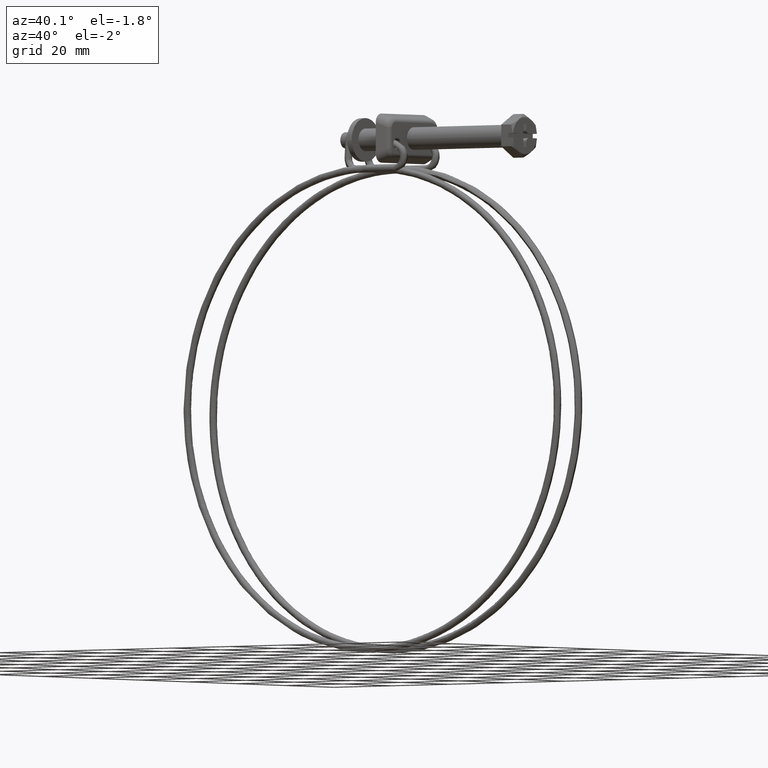
[diagram: clean part render]
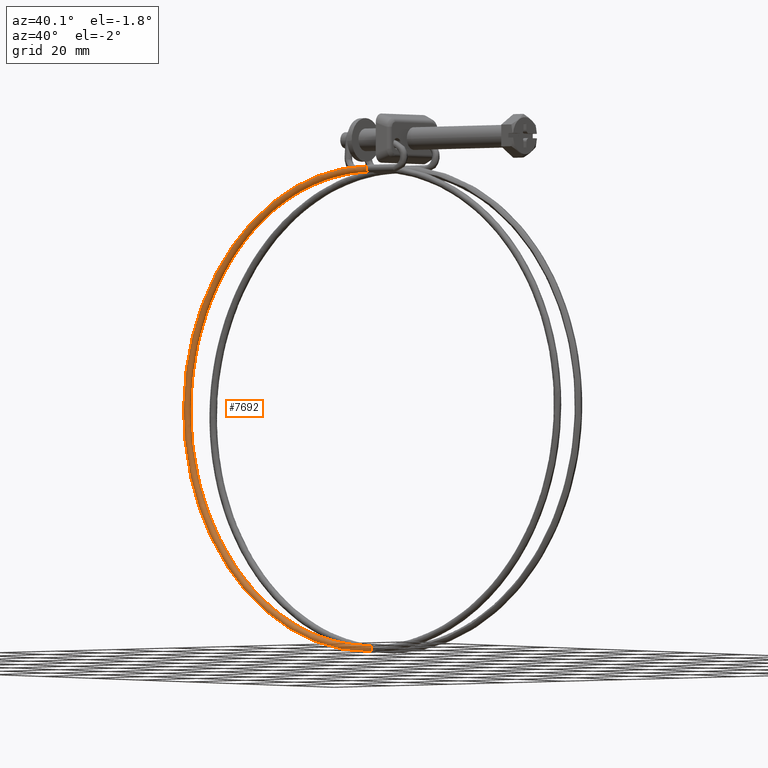
[diagram: same view with one face highlighted and labeled with its STEP entity id]
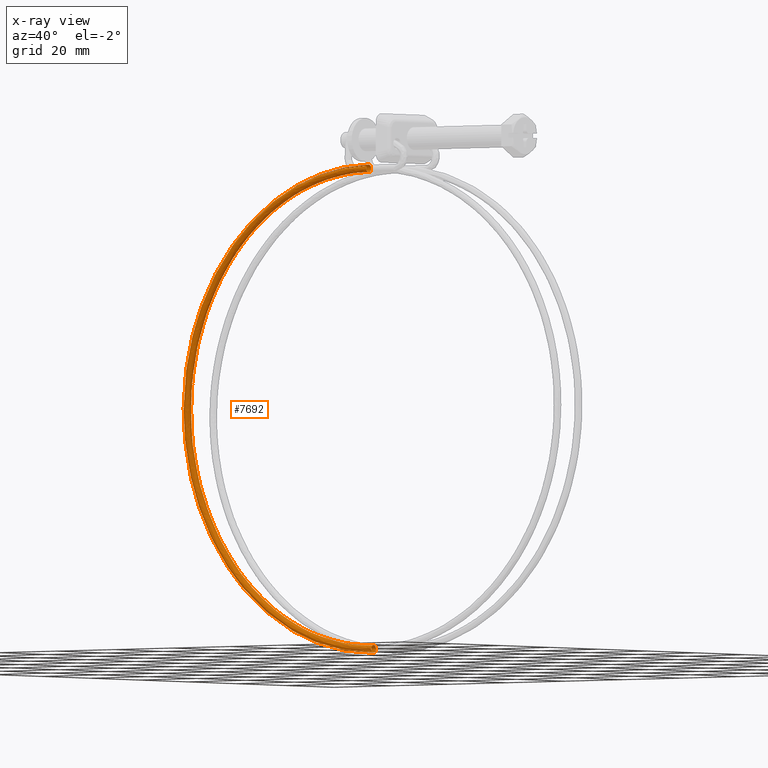
[diagram: x-ray of the same camera — body ghosted, the highlighted face saturated]
A machine part, auxiliary view. The second image highlights one B-rep face of the part: STEP entity #7692.
The next image is the same camera in x-ray: the body ghosted, the highlighted face saturated — about 0% of this face is hidden behind the body in this view.
In plain terms, the highlighted face is a freeform B-spline surface patch.
Its self-contained STEP definition (entity closure, byte-faithful):
#5718=CARTESIAN_POINT('',(-44.649999999999046,-5.988340908719309,-6.903656395402618));
#5719=VERTEX_POINT('',#5718);
#5720=CARTESIAN_POINT('',(-44.649999999999046,-6.341647600425940,-6.850501847938300));
#5721=VERTEX_POINT('',#5720);
#5722=CARTESIAN_POINT('',(-44.649999999999046,-5.988340908719309,-6.903656395402618));
#5723=CARTESIAN_POINT('',(-44.649999999999046,-6.101737345944429,-6.865172235202039));
#5724=CARTESIAN_POINT('',(-44.649999999999046,-6.221881593216526,-6.846560706979928));
#5725=CARTESIAN_POINT('',(-44.649999999999046,-6.341647600425940,-6.850501847938300));
#5726=B_SPLINE_CURVE_WITH_KNOTS('',3,(#5722,#5723,#5724,#5725),.UNSPECIFIED.,.F.,.U.,(4,4),(0.942811843935245,1.0),.UNSPECIFIED.);
#5727=EDGE_CURVE('',#5719,#5721,#5726,.T.);
#5729=CARTESIAN_POINT('',(-44.649999999999046,-7.060248549818919,-7.188876349357912));
#5730=VERTEX_POINT('',#5729);
#5740=CARTESIAN_POINT('',(-44.649999999999046,-6.278356367922030,-8.849500152061665));
#5741=VERTEX_POINT('',#5740);
#5742=CARTESIAN_POINT('',(-44.649999999999046,-7.060248549818919,-7.188876349357912));
#5743=CARTESIAN_POINT('',(-44.649999999999046,-7.226087401114802,-7.377586474456151));
#5744=CARTESIAN_POINT('',(-44.649999999999046,-7.317454529690281,-7.630445629972988));
#5745=CARTESIAN_POINT('',(-44.649999999999046,-7.301216333274380,-8.143314882367472));
#5746=CARTESIAN_POINT('',(-44.649999999999046,-7.185263428286760,-8.399961293022701));
#5747=CARTESIAN_POINT('',(-44.649999999999046,-6.803492136794089,-8.758299623096461));
#5748=CARTESIAN_POINT('',(-44.649999999999046,-6.540024634037550,-8.857784955022959));
#5749=CARTESIAN_POINT('',(-44.649999999999046,-6.278356367922030,-8.849500152061665));
#5750=B_SPLINE_CURVE_WITH_KNOTS('',3,(#5742,#5743,#5744,#5745,#5746,#5747,#5748,#5749),.UNSPECIFIED.,.F.,.U.,(4,2,2,4),(0.130000262351252,0.250000000000000,0.375000000000000,0.500000000000000),.UNSPECIFIED.);
#5751=EDGE_CURVE('',#5730,#5741,#5750,.T.);
#5753=CARTESIAN_POINT('',(-44.649999999371360,-5.310474070029812,-7.879430643908948));
#5754=VERTEX_POINT('',#5753);
#5755=CARTESIAN_POINT('',(-44.649999999999046,-6.278356367922030,-8.849500152061665));
#5756=CARTESIAN_POINT('',(-44.649999999911707,-6.016682688212904,-8.841215521237947));
#5757=CARTESIAN_POINT('',(-44.649999999791078,-5.760028800690158,-8.725262853994423));
#5758=CARTESIAN_POINT('',(-44.649999999560670,-5.415616237429212,-8.358343651055815));
#5759=CARTESIAN_POINT('',(-44.649999999452042,-5.318147165945974,-8.120582920263427));
#5760=CARTESIAN_POINT('',(-44.649999999371360,-5.310474070029812,-7.879430643908948));
#5761=B_SPLINE_CURVE_WITH_KNOTS('',3,(#5755,#5756,#5757,#5758,#5759,#5760),.UNSPECIFIED.,.F.,.U.,(4,2,4),(0.500000000000000,0.625000000000000,0.740274521158673),.UNSPECIFIED.);
#5762=EDGE_CURVE('',#5741,#5754,#5761,.T.);
#5837=CARTESIAN_POINT('',(-44.649999999371360,-5.310474070029812,-7.879430643908948));
#5838=CARTESIAN_POINT('',(-44.649999999379993,-5.309825519526923,-7.859078792878525));
#5839=CARTESIAN_POINT('',(-44.649999999388832,-5.309816082667636,-7.838702652882171));
#5840=CARTESIAN_POINT('',(-44.649999999513902,-5.318722168566631,-7.556584230459575));
#5841=CARTESIAN_POINT('',(-44.649999999660231,-5.434647803677936,-7.299830920178500));
#5842=CARTESIAN_POINT('',(-44.649999999868960,-5.729049013294997,-7.023310944488372));
#5843=CARTESIAN_POINT('',(-44.649999999938643,-5.853951370551862,-6.949512709024257));
#5844=CARTESIAN_POINT('',(-44.649999999999046,-5.988340908719309,-6.903656395402618));
#5845=B_SPLINE_CURVE_WITH_KNOTS('',3,(#5837,#5838,#5839,#5840,#5841,#5842,#5843,#5844),.UNSPECIFIED.,.F.,.U.,(4,2,2,4),(0.740274521158673,0.750000000000000,0.875000000000000,0.942811843935245),.UNSPECIFIED.);
#5846=EDGE_CURVE('',#5754,#5719,#5845,.T.);
#6664=CARTESIAN_POINT('',(-44.649999999855410,-3.364945210158729,-135.203131635922600));
#6665=VERTEX_POINT('',#6664);
#6681=CARTESIAN_POINT('',(-44.650000000000752,-4.300002000000002,-133.850000999999990));
#6682=VERTEX_POINT('',#6681);
#6683=CARTESIAN_POINT('',(-44.650000000000752,-4.300002000000002,-133.850000999999990));
#6684=CARTESIAN_POINT('',(-44.649999999987593,-4.038161661959670,-133.850016503426100));
#6685=CARTESIAN_POINT('',(-44.649999999966681,-3.777909289246834,-133.957814246805610));
#6686=CARTESIAN_POINT('',(-44.649999999921150,-3.407527296419484,-134.328108156277690));
#6687=CARTESIAN_POINT('',(-44.649999999896842,-3.299678426657533,-134.588324114420290));
#6688=CARTESIAN_POINT('',(-44.649999999869038,-3.299591888972492,-134.970530271645000));
#6689=CARTESIAN_POINT('',(-44.649999999861457,-3.322352722698359,-135.090572399688800));
#6690=CARTESIAN_POINT('',(-44.649999999855410,-3.364945210158729,-135.203131635922600));
#6691=B_SPLINE_CURVE_WITH_KNOTS('',3,(#6683,#6684,#6685,#6686,#6687,#6688,#6689,#6690),.UNSPECIFIED.,.F.,.U.,(4,2,2,4),(0.500000000000000,0.625000000000000,0.750000000000000,0.807474354685364),.UNSPECIFIED.);
#6692=EDGE_CURVE('',#6682,#6665,#6691,.T.);
#6694=CARTESIAN_POINT('',(-44.650000000000759,-5.028951109210404,-135.534536542634500));
#6695=VERTEX_POINT('',#6694);
#6696=CARTESIAN_POINT('',(-44.650000000000759,-5.028951109210404,-135.534536542634500));
#6697=CARTESIAN_POINT('',(-44.650000000000759,-5.200678748661233,-135.351169005261110));
#6698=CARTESIAN_POINT('',(-44.650000000000752,-5.300001999999999,-135.101327862819890));
#6699=CARTESIAN_POINT('',(-44.650000000000759,-5.300002000000001,-134.588201612200890));
#6700=CARTESIAN_POINT('',(-44.650000000000738,-5.192228903609815,-134.328014341236700));
#6701=CARTESIAN_POINT('',(-44.650000000000752,-4.821988658763284,-133.957774096390210));
#6702=CARTESIAN_POINT('',(-44.650000000000752,-4.561801387799152,-133.850000999999990));
#6703=CARTESIAN_POINT('',(-44.650000000000752,-4.300002000000002,-133.850000999999990));
#6704=B_SPLINE_CURVE_WITH_KNOTS('',3,(#6696,#6697,#6698,#6699,#6700,#6701,#6702,#6703),.UNSPECIFIED.,.F.,.U.,(4,2,2,4),(0.130000262351262,0.250000000000000,0.375000000000000,0.500000000000000),.UNSPECIFIED.);
#6705=EDGE_CURVE('',#6695,#6682,#6704,.T.);
#6707=CARTESIAN_POINT('',(-44.649999999978697,-4.300002000000001,-135.850000999999990));
#6708=VERTEX_POINT('',#6707);
#6773=CARTESIAN_POINT('',(-44.649999999855410,-3.364945210158729,-135.203131635922600));
#6774=CARTESIAN_POINT('',(-44.649999999868037,-3.415054867142068,-135.335349654665490));
#6775=CARTESIAN_POINT('',(-44.649999999882482,-3.492539150088722,-135.457238662669110));
#6776=CARTESIAN_POINT('',(-44.649999999925498,-3.777820058850048,-135.742301835923310));
#6777=CARTESIAN_POINT('',(-44.649999999955362,-4.038116918531990,-135.850033442921700));
#6778=CARTESIAN_POINT('',(-44.649999999978697,-4.300002000000001,-135.850000999999990));
#6779=B_SPLINE_CURVE_WITH_KNOTS('',3,(#6773,#6774,#6775,#6776,#6777,#6778),.UNSPECIFIED.,.F.,.U.,(4,2,4),(0.807474354685363,0.875000000000000,1.0),.UNSPECIFIED.);
#6780=EDGE_CURVE('',#6665,#6708,#6779,.T.);
#7352=CARTESIAN_POINT('',(-44.650000000000752,-5.028949982883884,-135.534537745304700));
#7353=CARTESIAN_POINT('',(-44.650000000000752,-5.200678314366810,-135.351170097699110));
#7354=CARTESIAN_POINT('',(-44.650000000000752,-5.300002000000000,-135.101328412287190));
#7355=CARTESIAN_POINT('',(-44.650000000000752,-5.300002000000000,-134.588201612200810));
#7356=CARTESIAN_POINT('',(-44.650000000000752,-5.192228903609820,-134.328014341236610));
#7357=CARTESIAN_POINT('',(-44.650000000000752,-4.821988658763289,-133.957774096390210));
#7358=CARTESIAN_POINT('',(-44.650000000000752,-4.561801387799160,-133.850000999999990));
#7359=CARTESIAN_POINT('',(-44.650000000000752,-4.038202612200855,-133.850000999999990));
#7360=CARTESIAN_POINT('',(-44.650000000000752,-3.778015341236725,-133.957774096390210));
#7361=CARTESIAN_POINT('',(-44.650000000000752,-3.407775096390195,-134.328014341236610));
#7362=CARTESIAN_POINT('',(-44.650000000000752,-3.300002000000000,-134.588201612200810));
#7363=CARTESIAN_POINT('',(-44.650000000000752,-3.300002000000000,-135.111800387799210));
#7364=CARTESIAN_POINT('',(-44.650000000000752,-3.407775096390195,-135.371987658763200));
#7365=CARTESIAN_POINT('',(-44.650000000000752,-3.778015341236725,-135.742227903609800));
#7366=CARTESIAN_POINT('',(-44.650000000000752,-4.038202612200855,-135.850000999999990));
#7367=CARTESIAN_POINT('',(-44.650000000000752,-4.300002000000007,-135.850000999999990));
#7368=CARTESIAN_POINT('',(-53.051651470459703,-5.028950509454305,-135.534537751134710));
#7369=CARTESIAN_POINT('',(-53.027288764811203,-5.200678839408155,-135.351170104923910));
#7370=CARTESIAN_POINT('',(-52.994373168267167,-5.300002522985792,-135.101328420362310));
#7371=CARTESIAN_POINT('',(-52.927193545750598,-5.300002518798801,-134.588201620276010));
#7372=CARTESIAN_POINT('',(-52.893352603524498,-5.192229420306440,-134.328014348388990));
#7373=CARTESIAN_POINT('',(-52.845647149488002,-4.821989172509470,-133.957774100543390));
#7374=CARTESIAN_POINT('',(-52.832076399894007,-4.561801900722170,-133.850001002076600));
#7375=CARTESIAN_POINT('',(-52.833161335157897,-4.038203125222776,-133.850000997807800));
#7376=CARTESIAN_POINT('',(-52.847810339111398,-3.778015855187715,-133.957774092005590));
#7377=CARTESIAN_POINT('',(-52.897050123254800,-3.407775613433455,-134.328014333852000));
#7378=CARTESIAN_POINT('',(-52.931337693033313,-3.300002519186480,-134.588201603893000));
#7379=CARTESIAN_POINT('',(-52.999888328340901,-3.300002523457110,-135.111800379491200));
#7380=CARTESIAN_POINT('',(-53.033729270567100,-3.407775621949470,-135.371987651378390));
#7381=CARTESIAN_POINT('',(-53.081434724560303,-3.778015869744625,-135.742227899225410));
#7382=CARTESIAN_POINT('',(-53.095005474154512,-4.038203141537336,-135.850000997807800));
#7383=CARTESIAN_POINT('',(-53.094463006544203,-4.300002529287037,-135.850000999942210));
#7384=CARTESIAN_POINT('',(-61.447229034788698,-5.055384990124714,-133.864266130881700));
#7385=CARTESIAN_POINT('',(-61.398521364163329,-5.227036664890507,-133.685741967573190));
#7386=CARTESIAN_POINT('',(-61.332714140082842,-5.326256782318862,-133.442444143630810));
#7387=CARTESIAN_POINT('',(-61.198403814438713,-5.326045403111840,-132.942673144308800));
#7388=CARTESIAN_POINT('',(-61.130746572830802,-5.218165826940910,-132.689213700470990));
#7389=CARTESIAN_POINT('',(-61.035370403567903,-4.847775477929600,-132.328457648937190));
#7390=CARTESIAN_POINT('',(-61.008238786393903,-4.587545506899129,-132.223382516993010));
#7391=CARTESIAN_POINT('',(-61.010407866805998,-4.063950145022624,-132.223166824028990));
#7392=CARTESIAN_POINT('',(-61.039695207630501,-3.803808966828495,-132.328027591002810));
#7393=CARTESIAN_POINT('',(-61.138138919906901,-3.433723653883490,-132.688478606259390));
#7394=CARTESIAN_POINT('',(-61.206689091523501,-3.326058442578600,-132.941849257430190));
#7395=CARTESIAN_POINT('',(-61.343740444106203,-3.326274135645180,-133.451819664901590));
#7396=CARTESIAN_POINT('',(-61.411397685714199,-3.434153711819715,-133.705279108970190));
#7397=CARTESIAN_POINT('',(-61.506773855034801,-3.804544060831025,-134.066035160273200));
#7398=CARTESIAN_POINT('',(-61.533905472208687,-4.064774031857895,-134.171110292217410));
#7399=CARTESIAN_POINT('',(-61.532820931973802,-4.326571712794342,-134.171218138757010));
#7400=CARTESIAN_POINT('',(-76.968836144378258,-5.157139875703120,-127.434977289049600));
#7401=CARTESIAN_POINT('',(-76.875122169151851,-5.328496502966043,-127.275095430512290));
#7402=CARTESIAN_POINT('',(-76.748508506461832,-5.427317992079202,-127.056984570529290));
#7403=CARTESIAN_POINT('',(-76.490094290360588,-5.426293025908240,-126.608619315071000));
#7404=CARTESIAN_POINT('',(-76.359921178104216,-5.318003614903181,-126.381054907959400));
#7405=CARTESIAN_POINT('',(-76.176416611802608,-4.947035523210550,-126.056802996794800));
#7406=CARTESIAN_POINT('',(-76.124215148193599,-4.686641201972960,-125.962112181433000));
#7407=CARTESIAN_POINT('',(-76.128388477573296,-4.163058979342491,-125.961066297480600));
#7408=CARTESIAN_POINT('',(-76.184737571825195,-3.903095209686230,-126.054717669476200));
#7409=CARTESIAN_POINT('',(-76.374144117058989,-3.533606221112310,-126.377490477733010));
#7410=CARTESIAN_POINT('',(-76.506035234143496,-3.426356253577895,-126.604624333093990));
#7411=CARTESIAN_POINT('',(-76.769723209872396,-3.427402137427615,-127.062139899888000));
#7412=CARTESIAN_POINT('',(-76.899896322128811,-3.535691548429080,-127.289704306769000));
#7413=CARTESIAN_POINT('',(-77.083400888372694,-3.906659640121704,-127.613956218164400));
#7414=CARTESIAN_POINT('',(-77.135602351981589,-4.167053961362895,-127.708647033526010));
#7415=CARTESIAN_POINT('',(-77.133515687320596,-4.428845072679938,-127.709169975444600));
#7416=CARTESIAN_POINT('',(-84.087385564352999,-5.232419709587752,-122.678490235570100));
#7417=CARTESIAN_POINT('',(-83.973032020696721,-5.403558064147421,-122.532399737199000));
#7418=CARTESIAN_POINT('',(-83.818532961565523,-5.502084652664221,-122.332921899802300));
#7419=CARTESIAN_POINT('',(-83.503205591330001,-5.500457804333590,-121.922586015185200));
#7420=CARTESIAN_POINT('',(-83.344363149348709,-5.391865202291000,-121.714178454974000));
#7421=CARTESIAN_POINT('',(-83.120443532443204,-5.020469703281701,-121.416931881462600));
#7422=CARTESIAN_POINT('',(-83.056745217052907,-4.759953797671140,-121.329923262732810));
#7423=CARTESIAN_POINT('',(-83.061837680619803,-4.236381295294480,-121.328263213423000));
#7424=CARTESIAN_POINT('',(-83.130597100978704,-3.976548770411811,-121.413622005053000));
#7425=CARTESIAN_POINT('',(-83.361718548777702,-3.607500935666875,-121.708520914390210));
#7426=CARTESIAN_POINT('',(-83.522657369063694,-3.500558160641175,-121.916245093852000));
#7427=CARTESIAN_POINT('',(-83.844419991752986,-3.502218209965351,-122.334955180196000));
#7428=CARTESIAN_POINT('',(-84.003262433734292,-3.610810812007940,-122.543362740349590));
#7429=CARTESIAN_POINT('',(-84.227182050639797,-3.982206311013630,-122.840609313860990));
#7430=CARTESIAN_POINT('',(-84.290880366145501,-4.242722216620595,-122.927617932591010));
#7431=CARTESIAN_POINT('',(-84.288334134362060,-4.504508467808923,-122.928447957245790));
#7432=CARTESIAN_POINT('',(-95.967045076798783,-5.420437044013289,-110.798787916934000));
#7433=CARTESIAN_POINT('',(-95.818249912327275,-5.591030296943582,-110.687139163458800));
#7434=CARTESIAN_POINT('',(-95.617217988315872,-5.688820417788413,-110.534194358506400));
#7435=CARTESIAN_POINT('',(-95.206918609946598,-5.685690463757970,-110.218830824350210));
#7436=CARTESIAN_POINT('',(-95.000235139511190,-5.576340689959739,-110.058264465058000));
#7437=CARTESIAN_POINT('',(-94.708874197435605,-5.203877808667211,-109.828459459667200));
#7438=CARTESIAN_POINT('',(-94.625990877745295,-4.943058265286510,-109.760635914454000));
#7439=CARTESIAN_POINT('',(-94.632617117000294,-4.419510037715730,-109.757442083803400));
#7440=CARTESIAN_POINT('',(-94.722085872732308,-4.160005275929900,-109.822091465537000));
#7441=CARTESIAN_POINT('',(-95.022817732378400,-3.792059153242970,-110.047379712232000));
#7442=CARTESIAN_POINT('',(-95.232228979750388,-3.685883543007305,-110.206631289951200));
#7443=CARTESIAN_POINT('',(-95.650901814821097,-3.689077373643410,-110.528430814600400));
#7444=CARTESIAN_POINT('',(-95.857585285256491,-3.798427147441640,-110.688997173950400));
#7445=CARTESIAN_POINT('',(-96.148946227332090,-4.170890028737770,-110.918802179341000));
#7446=CARTESIAN_POINT('',(-96.231829546907008,-4.431709572122080,-110.986625724554200));
#7447=CARTESIAN_POINT('',(-96.228516427279558,-4.693483685907470,-110.988222639879600));
#7448=CARTESIAN_POINT('',(-100.723482553268790,-5.533100572323808,-103.680246520081990));
#7449=CARTESIAN_POINT('',(-100.560898788484290,-5.703367212295768,-103.589234505927710));
#7450=CARTESIAN_POINT('',(-100.341237570467300,-5.800716057834845,-103.464171275271200));
#7451=CARTESIAN_POINT('',(-99.892916431180609,-5.796685475794940,-103.205713093916000));
#7452=CARTESIAN_POINT('',(-99.667079947348100,-5.686882021254729,-103.073812134602210));
#7453=CARTESIAN_POINT('',(-99.348719071446695,-5.313779587866010,-102.884416640138600));
#7454=CARTESIAN_POINT('',(-99.258155092474311,-5.052778111375361,-102.828088370701200));
#7455=CARTESIAN_POINT('',(-99.265395374390991,-4.529244428733950,-102.823975531939000));
#7456=CARTESIAN_POINT('',(-99.363155050812296,-4.269936055428816,-102.876216288670410));
#7457=CARTESIAN_POINT('',(-99.691755231489395,-3.902650054474375,-103.059795350721600));
#7458=CARTESIAN_POINT('',(-99.920572270824593,-3.796934112585970,-103.190003206803000));
#7459=CARTESIAN_POINT('',(-100.378042821117010,-3.801046951405810,-103.453736044920600));
#7460=CARTESIAN_POINT('',(-100.603879304834190,-3.910850405942405,-103.585637004234200));
#7461=CARTESIAN_POINT('',(-100.922240180851010,-4.283952839334730,-103.775032498698000));
#7462=CARTESIAN_POINT('',(-101.012804159938800,-4.544954315818170,-103.831360768135200));
#7463=CARTESIAN_POINT('',(-101.009184018980410,-4.806721157138875,-103.833417187516300));
#7464=CARTESIAN_POINT('',(-107.152682043525600,-5.778755965502258,-88.158736480393785));
#7465=CARTESIAN_POINT('',(-106.971461132552700,-5.948310492642224,-88.112718660572710));
#7466=CARTESIAN_POINT('',(-106.726619920553200,-6.044697227525672,-88.048445506515819));
#7467=CARTESIAN_POINT('',(-106.226907262524610,-6.038703010071711,-87.914057821900300));
#7468=CARTESIAN_POINT('',(-105.975182907493600,-5.927910397376340,-87.844655911355602));
#7469=CARTESIAN_POINT('',(-105.620327993110610,-5.553413551285370,-87.743365100215996));
#7470=CARTESIAN_POINT('',(-105.519382570880000,-5.292015406832980,-87.712099931550910));
#7471=CARTESIAN_POINT('',(-105.527452813771210,-4.768513436452490,-87.705983383074397));
#7472=CARTESIAN_POINT('',(-105.636418783710200,-4.509633248076970,-87.731169668062108));
#7473=CARTESIAN_POINT('',(-106.002686745148200,-4.143786507719380,-87.823810373446690));
#7474=CARTESIAN_POINT('',(-106.257733319789200,-4.039072778755450,-87.890694327961398));
#7475=CARTESIAN_POINT('',(-106.767644195328600,-4.045189327174250,-88.027824618385495));
#7476=CARTESIAN_POINT('',(-107.019368550474990,-4.155981939873230,-88.097226528930207));
#7477=CARTESIAN_POINT('',(-107.374223464742600,-4.530478785960590,-88.198517340069799));
#7478=CARTESIAN_POINT('',(-107.475168886858000,-4.791876930420190,-88.229782508734914));
#7479=CARTESIAN_POINT('',(-107.471133765412300,-5.053627915610434,-88.232840782973170));
#7480=CARTESIAN_POINT('',(-108.822915579199600,-5.911651196647524,-79.761873550654627));
#7481=CARTESIAN_POINT('',(-108.636853328126900,-6.080820503223130,-79.740195537797831));
#7482=CARTESIAN_POINT('',(-108.385471151409210,-6.176686780129985,-79.708807042644452));
#7483=CARTESIAN_POINT('',(-107.872408604970800,-6.169630325493539,-79.641535838018896));
#7484=CARTESIAN_POINT('',(-107.613959401197210,-6.058302623333280,-79.605943062211196));
#7485=CARTESIAN_POINT('',(-107.249624491783610,-5.683051463577059,-79.552312866302387));
#7486=CARTESIAN_POINT('',(-107.145982299568000,-5.421438739842071,-79.534605691999204));
#7487=CARTESIAN_POINT('',(-107.154268140081000,-4.897953924341790,-79.527405228120500));
#7488=CARTESIAN_POINT('',(-107.266145149989400,-4.639305364498300,-79.537956277817500));
#7489=CARTESIAN_POINT('',(-107.642198007432000,-4.274237198469206,-79.581403479927104));
#7490=CARTESIAN_POINT('',(-107.904058184377600,-4.170065620994460,-79.614032091792794));
#7491=CARTESIAN_POINT('',(-108.427591395029000,-4.177266084912795,-79.682676178203096));
#7492=CARTESIAN_POINT('',(-108.686040598802610,-4.288593787062239,-79.718268953953100));
#7493=CARTESIAN_POINT('',(-109.050375508216210,-4.663844946818460,-79.771899149861909));
#7494=CARTESIAN_POINT('',(-109.154017700431790,-4.925457670557059,-79.789606324222802));
#7495=CARTESIAN_POINT('',(-109.149874780175400,-5.187200078307201,-79.793206556133299));
#7496=CARTESIAN_POINT('',(-108.822915579199600,-6.177546248352906,-62.961539306295592));
#7497=CARTESIAN_POINT('',(-108.636853328126900,-6.345944812753230,-62.988559928721777));
#7498=CARTESIAN_POINT('',(-108.385471151409210,-6.440769766949303,-63.022966450422409));
#7499=CARTESIAN_POINT('',(-107.872408604970800,-6.431588007781611,-63.089980656548100));
#7500=CARTESIAN_POINT('',(-107.613959401197210,-6.319189708564061,-63.122032572046891));
#7501=CARTESIAN_POINT('',(-107.249624491783610,-5.942429331981090,-63.163760853182900));
#7502=CARTESIAN_POINT('',(-107.145982299568000,-5.680387281995400,-63.173180263022402));
#7503=CARTESIAN_POINT('',(-107.154268140081000,-5.156936789666351,-63.163811120978593));
#7504=CARTESIAN_POINT('',(-107.266145149989400,-4.898751667890460,-63.145080262684090));
#7505=CARTESIAN_POINT('',(-107.642198007432000,-4.535241258999250,-63.090102013928302));
#7506=CARTESIAN_POINT('',(-107.904058184377600,-4.432154408157325,-63.054193170270310));
#7507=CARTESIAN_POINT('',(-108.427591395029000,-4.441523550161570,-62.985811327227204));
#7508=CARTESIAN_POINT('',(-108.686040598802610,-4.553921849389941,-62.953759411786102));
#7509=CARTESIAN_POINT('',(-109.050375508216210,-4.930682225972909,-62.912031130650092));
#7510=CARTESIAN_POINT('',(-109.154017700431790,-5.192724275954990,-62.902611720752901));
#7511=CARTESIAN_POINT('',(-109.149874780175400,-5.454449522119520,-62.907296291803647));
#7512=CARTESIAN_POINT('',(-107.152682043787390,-6.310441479485779,-54.564676376613242));
#7513=CARTESIAN_POINT('',(-106.971461132835800,-6.478454823323338,-54.616036805999492));
#7514=CARTESIAN_POINT('',(-106.726619920783190,-6.572759319542890,-54.683327986550438));
#7515=CARTESIAN_POINT('',(-106.226907262754390,-6.562515323196250,-54.817458672666113));
#7516=CARTESIAN_POINT('',(-105.975182907723390,-6.449581934510200,-54.883319722959612));
#7517=CARTESIAN_POINT('',(-105.620327993282800,-6.072067244261980,-54.972708619268808));
#7518=CARTESIAN_POINT('',(-105.519382571109800,-5.809810615000900,-54.995686023527902));
#7519=CARTESIAN_POINT('',(-105.527452814058800,-5.286377277548440,-54.985232966024100));
#7520=CARTESIAN_POINT('',(-105.636418783940200,-5.028423784297370,-54.951866872438899));
#7521=CARTESIAN_POINT('',(-106.002686745320400,-4.665691949738270,-54.847695120408197));
#7522=CARTESIAN_POINT('',(-106.257733320076800,-4.563147250381920,-54.777530934158698));
#7523=CARTESIAN_POINT('',(-106.767644195616200,-4.573600307889310,-54.640662887102003));
#7524=CARTESIAN_POINT('',(-107.019368550705000,-4.686533696564540,-54.574801836808497));
#7525=CARTESIAN_POINT('',(-107.374223464972600,-5.064048386816371,-54.485412940557012));
#7526=CARTESIAN_POINT('',(-107.475168887088000,-5.326305016081050,-54.462435536240200));
#7527=CARTESIAN_POINT('',(-107.471133765642310,-5.588021684805475,-54.467662064992098));
#7528=CARTESIAN_POINT('',(-100.723482553005400,-6.556096872689046,-39.043166336810337));
#7529=CARTESIAN_POINT('',(-100.560898788199590,-6.723398103691418,-39.139520960538270));
#7530=CARTESIAN_POINT('',(-100.341237570235800,-6.816740489255201,-39.267602217795059));
#7531=CARTESIAN_POINT('',(-99.892916430949114,-6.804532857487450,-39.525803400650453));
#7532=CARTESIAN_POINT('',(-99.667079947116605,-6.690610310653440,-39.654163499597551));
#7533=CARTESIAN_POINT('',(-99.348719071272797,-6.311701207702960,-39.831657079346201));
#7534=CARTESIAN_POINT('',(-99.258155092242802,-6.049047910465730,-39.879697584262097));
#7535=CARTESIAN_POINT('',(-99.265395374101800,-5.525646285281410,-39.867240817159349));
#7536=CARTESIAN_POINT('',(-99.363155050580701,-5.268120976974370,-39.806820251830501));
#7537=CARTESIAN_POINT('',(-99.691755231315497,-4.906828403004910,-39.611710143133308));
#7538=CARTESIAN_POINT('',(-99.920572270535303,-4.805285916580250,-39.478222055201897));
#7539=CARTESIAN_POINT('',(-100.378042820828000,-4.817742683679380,-39.214751460451502));
#7540=CARTESIAN_POINT('',(-100.603879304602600,-4.931665230524210,-39.086391361504397));
#7541=CARTESIAN_POINT('',(-100.922240180619400,-5.310574333471069,-38.908897781698052));
#7542=CARTESIAN_POINT('',(-101.012804159707200,-5.573227630704700,-38.860857276839852));
#7543=CARTESIAN_POINT('',(-101.009184018748800,-5.834928443298665,-38.867085660391233));
#7544=CARTESIAN_POINT('',(-95.967045076681771,-6.668760400986747,-31.924624939727710));
#7545=CARTESIAN_POINT('',(-95.818249912210305,-6.835735019029460,-32.041616302776632));
#7546=CARTESIAN_POINT('',(-95.617217988199002,-6.928636129290876,-32.197579134329331));
#7547=CARTESIAN_POINT('',(-95.206918609829700,-6.915527869517200,-32.512685669985601));
#7548=CARTESIAN_POINT('',(-95.000235139278900,-6.801151641937610,-32.669711168911398));
#7549=CARTESIAN_POINT('',(-94.708874197203301,-6.421602986894550,-32.887614259529293));
#7550=CARTESIAN_POINT('',(-94.625990877628411,-6.158767756550970,-32.947150040278899));
#7551=CARTESIAN_POINT('',(-94.632617116998688,-5.635380676292410,-32.933774265064507));
#7552=CARTESIAN_POINT('',(-94.722085872615395,-5.378051756462470,-32.860945074733451));
#7553=CARTESIAN_POINT('',(-95.022817732146109,-5.017419304232690,-32.624125781392351));
#7554=CARTESIAN_POINT('',(-95.232228979518098,-4.916336486151691,-32.461593971765502));
#7555=CARTESIAN_POINT('',(-95.650901814704099,-4.929712261434560,-32.140056690598954));
#7556=CARTESIAN_POINT('',(-95.857585285139507,-5.044088489010540,-31.983031191442450));
#7557=CARTESIAN_POINT('',(-96.148946227215106,-5.423637144053609,-31.765128100939851));
#7558=CARTESIAN_POINT('',(-96.231829546790109,-5.686472374389970,-31.705592320190298));
#7559=CARTESIAN_POINT('',(-96.228516427162603,-5.948165914519250,-31.712280207797502));
#7560=CARTESIAN_POINT('',(-84.087385564466743,-6.856777735413084,-20.044922621667940));
#7561=CARTESIAN_POINT('',(-83.973032020810521,-7.023207251832274,-20.196355729604221));
#7562=CARTESIAN_POINT('',(-83.818532961679310,-7.115371894415078,-20.398851593494889));
#7563=CARTESIAN_POINT('',(-83.503205591443788,-7.100760528941570,-20.808930479612101));
#7564=CARTESIAN_POINT('',(-83.344363149577802,-6.985627129606350,-21.013797179572201));
#7565=CARTESIAN_POINT('',(-83.120443532672411,-6.605011092272850,-21.299141838310799));
#7566=CARTESIAN_POINT('',(-83.056745217166707,-6.341872224166340,-21.377862692577001));
#7567=CARTESIAN_POINT('',(-83.061837680618197,-5.818509418713660,-21.362953135906501));
#7568=CARTESIAN_POINT('',(-83.130597101092405,-5.561508261973351,-21.269414535678951));
#7569=CARTESIAN_POINT('',(-83.361718549006795,-5.201977521794370,-20.962984579695700));
#7570=CARTESIAN_POINT('',(-83.522657369292787,-5.101661868503401,-20.751980168556852));
#7571=CARTESIAN_POINT('',(-83.844419991866801,-5.116571425105410,-20.333532325464802));
#7572=CARTESIAN_POINT('',(-84.003262433848107,-5.231704824444241,-20.128665625735401));
#7573=CARTESIAN_POINT('',(-84.227182050753598,-5.612320861777749,-19.843320966881400));
#7574=CARTESIAN_POINT('',(-84.290880366259202,-5.875459729891460,-19.764600112615248));
#7575=CARTESIAN_POINT('',(-84.288334134475818,-6.137141132617800,-19.772054890950500));
#7576=CARTESIAN_POINT('',(-76.968836144491945,-6.932057569288068,-15.288435567901169));
#7577=CARTESIAN_POINT('',(-76.875122169265552,-7.098268812999223,-15.453660036007960));
#7578=CARTESIAN_POINT('',(-76.748508506575533,-7.190138554985873,-15.674788922538241));
#7579=CARTESIAN_POINT('',(-76.490094290474289,-7.174925307363300,-16.122897179496551));
#7580=CARTESIAN_POINT('',(-76.359921178275499,-7.059488716979740,-16.346920726183949));
#7581=CARTESIAN_POINT('',(-76.176416611974005,-6.678445272343989,-16.659270722806600));
#7582=CARTESIAN_POINT('',(-76.124215148307400,-6.415184819857291,-16.745673773589200));
#7583=CARTESIAN_POINT('',(-76.128388477687110,-5.891831734665640,-16.730150051619098));
#7584=CARTESIAN_POINT('',(-76.184737571996607,-5.634961822702520,-16.628318871026099));
#7585=CARTESIAN_POINT('',(-76.374144117230301,-5.275872236347120,-16.294015016353850));
#7586=CARTESIAN_POINT('',(-76.506035234314908,-5.175863775564870,-16.063600928969748));
#7587=CARTESIAN_POINT('',(-76.769723209986097,-5.191387497639530,-15.606347605542950));
#7588=CARTESIAN_POINT('',(-76.899896322127105,-5.306824088012280,-15.382324058855501));
#7589=CARTESIAN_POINT('',(-77.083400888486395,-5.687867532662450,-15.069974062117550));
#7590=CARTESIAN_POINT('',(-77.135602352153001,-5.951127985141940,-14.983571011450239));
#7591=CARTESIAN_POINT('',(-77.133515687463159,-6.212804527741370,-14.991332872492990));
#7592=CARTESIAN_POINT('',(-61.447229034671707,-7.033812454884941,-8.859146726069101));
#7593=CARTESIAN_POINT('',(-61.398521364046317,-7.199728651096928,-9.043013498947007));
#7594=CARTESIAN_POINT('',(-61.332714139965830,-7.291199764774619,-9.289329349436802));
#7595=CARTESIAN_POINT('',(-61.198403814321701,-7.275172930166909,-9.788843350258780));
#7596=CARTESIAN_POINT('',(-61.130746572656101,-7.159326504970840,-10.038761933903100));
#7597=CARTESIAN_POINT('',(-61.035370403393202,-6.777705317632139,-10.387616070433420));
#7598=CARTESIAN_POINT('',(-61.008238786276912,-6.514280514945550,-10.484403438029300));
#7599=CARTESIAN_POINT('',(-61.010407866689000,-5.990940568985500,-10.468049525070560));
#7600=CARTESIAN_POINT('',(-61.039695207455800,-5.734248065560250,-10.355008949499460));
#7601=CARTESIAN_POINT('',(-61.138138919732199,-5.375754803593970,-9.983026887366041));
#7602=CARTESIAN_POINT('',(-61.206689091348800,-5.276161586582180,-9.726376004633410));
#7603=CARTESIAN_POINT('',(-61.343740443989198,-5.292515499436379,-9.216667840529349));
#7604=CARTESIAN_POINT('',(-61.411397685712501,-5.408361924643271,-8.966749256885040));
#7605=CARTESIAN_POINT('',(-61.506773854917697,-5.789983111967540,-8.617895120470100));
#7606=CARTESIAN_POINT('',(-61.533905472033993,-6.053407914661350,-8.521107752758839));
#7607=CARTESIAN_POINT('',(-61.532820931827949,-6.315077887637770,-8.529284709180539));
#7608=CARTESIAN_POINT('',(-53.051651431698367,-7.060575882156156,-7.188908363507727));
#7609=CARTESIAN_POINT('',(-53.027288726175797,-7.226414949428116,-7.377618476232343));
#7610=CARTESIAN_POINT('',(-52.994373129802312,-7.317781853870621,-7.630477993549143));
#7611=CARTESIAN_POINT('',(-52.927193507635501,-7.301542323912860,-8.143347398350800));
#7612=CARTESIAN_POINT('',(-52.893352565629300,-7.185588751789640,-8.399993609562531));
#7613=CARTESIAN_POINT('',(-52.845647111842901,-6.803816515176491,-8.758331659200440));
#7614=CARTESIAN_POINT('',(-52.832076362277903,-6.540348742562641,-8.857816911285369));
#7615=CARTESIAN_POINT('',(-52.833161297540101,-6.017012231918161,-8.841247311847759));
#7616=CARTESIAN_POINT('',(-52.847810301463099,-5.760366112513700,-8.725294492837481));
#7617=CARTESIAN_POINT('',(-52.897050085353797,-5.402028757608390,-8.343523491030329));
#7618=CARTESIAN_POINT('',(-52.931337654955200,-5.302544101292230,-8.080056190238711));
#7619=CARTESIAN_POINT('',(-52.999888289862703,-5.319115049558750,-7.556720062957179));
#7620=CARTESIAN_POINT('',(-53.033729231824999,-5.435068613119359,-7.300073852599430));
#7621=CARTESIAN_POINT('',(-53.081434685652987,-5.816840828457380,-6.941735805315701));
#7622=CARTESIAN_POINT('',(-53.095005435217502,-6.080308593054160,-6.842250553917440));
#7623=CARTESIAN_POINT('',(-53.094462967586452,-6.341976848709624,-6.850535353601726));
#7624=CARTESIAN_POINT('',(-44.649999999999046,-7.060247462115778,-7.188875111646758));
#7625=CARTESIAN_POINT('',(-44.649999999999046,-7.226087001608778,-7.377585368821793));
#7626=CARTESIAN_POINT('',(-44.649999999999046,-7.317454547078508,-7.630445080781011));
#7627=CARTESIAN_POINT('',(-44.649999999999046,-7.301216333274380,-8.143314882367472));
#7628=CARTESIAN_POINT('',(-44.649999999999046,-7.185263428286760,-8.399961293022701));
#7629=CARTESIAN_POINT('',(-44.649999999999046,-6.803492136794089,-8.758299623096461));
#7630=CARTESIAN_POINT('',(-44.649999999999046,-6.540024634037550,-8.857784955022959));
#7631=CARTESIAN_POINT('',(-44.649999999999046,-6.016688101806509,-8.841215349100370));
#7632=CARTESIAN_POINT('',(-44.649999999999046,-5.760041691151260,-8.725262444112760));
#7633=CARTESIAN_POINT('',(-44.649999999999046,-5.401703361077490,-8.343491152620061));
#7634=CARTESIAN_POINT('',(-44.649999999999046,-5.302218029151010,-8.080023649863570));
#7635=CARTESIAN_POINT('',(-44.649999999999046,-5.318787635073591,-7.556687117632490));
#7636=CARTESIAN_POINT('',(-44.649999999999046,-5.434740540061210,-7.300040706977260));
#7637=CARTESIAN_POINT('',(-44.649999999999046,-5.816511831553880,-6.941702376903481));
#7638=CARTESIAN_POINT('',(-44.649999999999046,-6.079979334310420,-6.842217044977010));
#7639=CARTESIAN_POINT('',(-44.649999999999046,-6.341647600425940,-6.850501847938300));
#7640=B_SPLINE_SURFACE_WITH_KNOTS('',3,3,((#7352,#7368,#7384,#7400,#7416,#7432,#7448,#7464,#7480,#7496,#7512,#7528,#7544,#7560,#7576,#7592,#7608,#7624),(#7353,#7369,#7385,#7401,#7417,#7433,#7449,#7465,#7481,#7497,#7513,#7529,#7545,#7561,#7577,#7593,#7609,#7625),(#7354,#7370,#7386,#7402,#7418,#7434,#7450,#7466,#7482,#7498,#7514,#7530,#7546,#7562,#7578,#7594,#7610,#7626),(#7355,#7371,#7387,#7403,#7419,#7435,#7451,#7467,#7483,#7499,#7515,#7531,#7547,#7563,#7579,#7595,#7611,#7627),(#7356,#7372,#7388,#7404,#7420,#7436,#7452,#7468,#7484,#7500,#7516,#7532,#7548,#7564,#7580,#7596,#7612,#7628),(#7357,#7373,#7389,#7405,#7421,#7437,#7453,#7469,#7485,#7501,#7517,#7533,#7549,#7565,#7581,#7597,#7613,#7629),(#7358,#7374,#7390,#7406,#7422,#7438,#7454,#7470,#7486,#7502,#7518,#7534,#7550,#7566,#7582,#7598,#7614,#7630),(#7359,#7375,#7391,#7407,#7423,#7439,#7455,#7471,#7487,#7503,#7519,#7535,#7551,#7567,#7583,#7599,#7615,#7631),(#7360,#7376,#7392,#7408,#7424,#7440,#7456,#7472,#7488,#7504,#7520,#7536,#7552,#7568,#7584,#7600,#7616,#7632),(#7361,#7377,#7393,#7409,#7425,#7441,#7457,#7473,#7489,#7505,#7521,#7537,#7553,#7569,#7585,#7601,#7617,#7633),(#7362,#7378,#7394,#7410,#7426,#7442,#7458,#7474,#7490,#7506,#7522,#7538,#7554,#7570,#7586,#7602,#7618,#7634),(#7363,#7379,#7395,#7411,#7427,#7443,#7459,#7475,#7491,#7507,#7523,#7539,#7555,#7571,#7587,#7603,#7619,#7635),(#7364,#7380,#7396,#7412,#7428,#7444,#7460,#7476,#7492,#7508,#7524,#7540,#7556,#7572,#7588,#7604,#7620,#7636),(#7365,#7381,#7397,#7413,#7429,#7445,#7461,#7477,#7493,#7509,#7525,#7541,#7557,#7573,#7589,#7605,#7621,#7637),(#7366,#7382,#7398,#7414,#7430,#7446,#7462,#7478,#7494,#7510,#7526,#7542,#7558,#7574,#7590,#7606,#7622,#7638),(#7367,#7383,#7399,#7415,#7431,#7447,#7463,#7479,#7495,#7511,#7527,#7543,#7559,#7575,#7591,#7607,#7623,#7639)),.UNSPECIFIED.,.F.,.F.,.U.,(4,2,2,2,2,2,2,4),(4,2,2,2,2,2,2,2,4),(0.0,0.753982236861560,1.539380400259018,2.324778563656476,3.110176727053934,3.895574890451392,4.680973053848850,5.466371217246308),(0.0,25.333389019630399,50.666778039260777,76.000167058891165,101.333556078521990,126.666945098152400,152.000334117782700,177.333723137413100,202.667112157043900),.UNSPECIFIED.);
#7641=ORIENTED_EDGE('',*,*,#5751,.F.);
#7642=CARTESIAN_POINT('',(-44.650000000000759,-5.028951109210404,-135.534536542634500));
#7643=CARTESIAN_POINT('',(-53.051651470459710,-5.028951635780826,-135.534536548464500));
#7644=CARTESIAN_POINT('',(-61.447229034788712,-5.055386115948595,-133.864264959970200));
#7645=CARTESIAN_POINT('',(-76.968836144378258,-5.157140999592219,-127.434976240385500));
#7646=CARTESIAN_POINT('',(-84.087385564352999,-5.232420832045470,-122.678489277346400));
#7647=CARTESIAN_POINT('',(-95.967045076798783,-5.420438162896018,-110.798787184592600));
#7648=CARTESIAN_POINT('',(-100.723482553268700,-5.533101689064338,-103.680245923093390));
#7649=CARTESIAN_POINT('',(-107.152682043525700,-5.778757077571860,-88.158736178533289));
#7650=CARTESIAN_POINT('',(-108.822915579199600,-5.911652306190238,-79.761873408453198));
#7651=CARTESIAN_POINT('',(-108.822915579199600,-6.177547352839854,-62.961539483537940));
#7652=CARTESIAN_POINT('',(-107.152682043787390,-6.310442581445838,-54.564676713514650));
#7653=CARTESIAN_POINT('',(-100.723482553005400,-6.556097969978178,-39.043166968839792));
#7654=CARTESIAN_POINT('',(-95.967045076681771,-6.668761496133679,-31.924625707110049));
#7655=CARTESIAN_POINT('',(-84.087385564466743,-6.856778826985029,-20.044923614932522));
#7656=CARTESIAN_POINT('',(-76.968836144491945,-6.932058659428631,-15.288436651606220));
#7657=CARTESIAN_POINT('',(-61.447229034671707,-7.033813543090723,-8.859147932021489));
#7658=CARTESIAN_POINT('',(-53.051651431698360,-7.060576969859307,-7.188909601218347));
#7659=CARTESIAN_POINT('',(-44.649999999999046,-7.060248549818919,-7.188876349357912));
#7660=B_SPLINE_CURVE_WITH_KNOTS('',3,(#7642,#7643,#7644,#7645,#7646,#7647,#7648,#7649,#7650,#7651,#7652,#7653,#7654,#7655,#7656,#7657,#7658,#7659),.UNSPECIFIED.,.F.,.U.,(4,2,2,2,2,2,2,2,4),(0.488697039242658,0.549784916511545,0.610872793780432,0.671960671049319,0.733048548318207,0.794136425587094,0.855224302855981,0.916312180124868,0.977400057393756),.UNSPECIFIED.);
#7661=EDGE_CURVE('',#6695,#5730,#7660,.T.);
#7662=ORIENTED_EDGE('',*,*,#7661,.F.);
#7663=ORIENTED_EDGE('',*,*,#6705,.T.);
#7664=ORIENTED_EDGE('',*,*,#6692,.T.);
#7665=ORIENTED_EDGE('',*,*,#6780,.T.);
#7666=CARTESIAN_POINT('',(-44.649999999978697,-4.300002000000001,-135.850000999999990));
#7667=CARTESIAN_POINT('',(-53.094463006544203,-4.300002529287037,-135.850000999942210));
#7668=CARTESIAN_POINT('',(-61.532820931973802,-4.326571712794342,-134.171218138757010));
#7669=CARTESIAN_POINT('',(-77.133515687320596,-4.428845072679938,-127.709169975444600));
#7670=CARTESIAN_POINT('',(-84.288334134362060,-4.504508467808923,-122.928447957245790));
#7671=CARTESIAN_POINT('',(-96.228516427279558,-4.693483685907470,-110.988222639879600));
#7672=CARTESIAN_POINT('',(-101.009184018980410,-4.806721157138875,-103.833417187516300));
#7673=CARTESIAN_POINT('',(-107.471133765412300,-5.053627915610434,-88.232840782973170));
#7674=CARTESIAN_POINT('',(-109.149874780175400,-5.187200078307201,-79.793206556133299));
#7675=CARTESIAN_POINT('',(-109.149874780175400,-5.454449522119520,-62.907296291803647));
#7676=CARTESIAN_POINT('',(-107.471133765642310,-5.588021684805475,-54.467662064992098));
#7677=CARTESIAN_POINT('',(-101.009184018748800,-5.834928443298665,-38.867085660391233));
#7678=CARTESIAN_POINT('',(-96.228516427162603,-5.948165914519250,-31.712280207797502));
#7679=CARTESIAN_POINT('',(-84.288334134475818,-6.137141132617800,-19.772054890950500));
#7680=CARTESIAN_POINT('',(-77.133515687463159,-6.212804527741370,-14.991332872492990));
#7681=CARTESIAN_POINT('',(-61.532820931827949,-6.315077887637770,-8.529284709180539));
#7682=CARTESIAN_POINT('',(-53.094462967586452,-6.341976848709624,-6.850535353601726));
#7683=CARTESIAN_POINT('',(-44.649999999999046,-6.341647600425940,-6.850501847938300));
#7684=B_SPLINE_CURVE_WITH_KNOTS('',3,(#7666,#7667,#7668,#7669,#7670,#7671,#7672,#7673,#7674,#7675,#7676,#7677,#7678,#7679,#7680,#7681,#7682,#7683),.UNSPECIFIED.,.F.,.U.,(4,2,2,2,2,2,2,2,4),(0.488697039242658,0.549784916511545,0.610872793780432,0.671960671049319,0.733048548318207,0.794136425587094,0.855224302855981,0.916312180124868,0.977400057393756),.UNSPECIFIED.);
#7685=EDGE_CURVE('',#6708,#5721,#7684,.T.);
#7686=ORIENTED_EDGE('',*,*,#7685,.T.);
#7687=ORIENTED_EDGE('',*,*,#5727,.F.);
#7688=ORIENTED_EDGE('',*,*,#5846,.F.);
#7689=ORIENTED_EDGE('',*,*,#5762,.F.);
#7690=EDGE_LOOP('',(#7641,#7662,#7663,#7664,#7665,#7686,#7687,#7688,#7689));
#7691=FACE_OUTER_BOUND('',#7690,.T.);
#7692=ADVANCED_FACE('',(#7691),#7640,.T.);